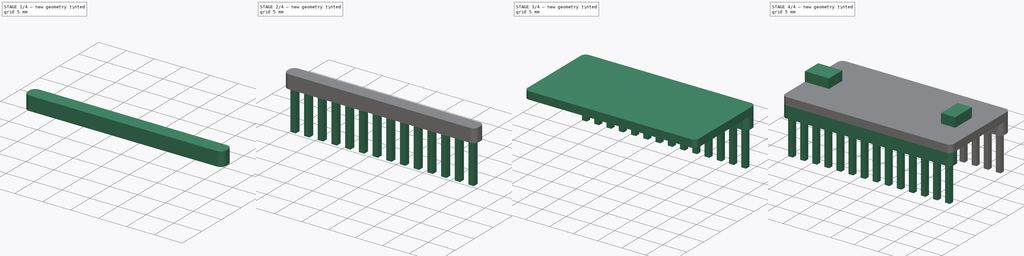
[diagram: build sequence overview — one tinted view per stage of 4, left to right]
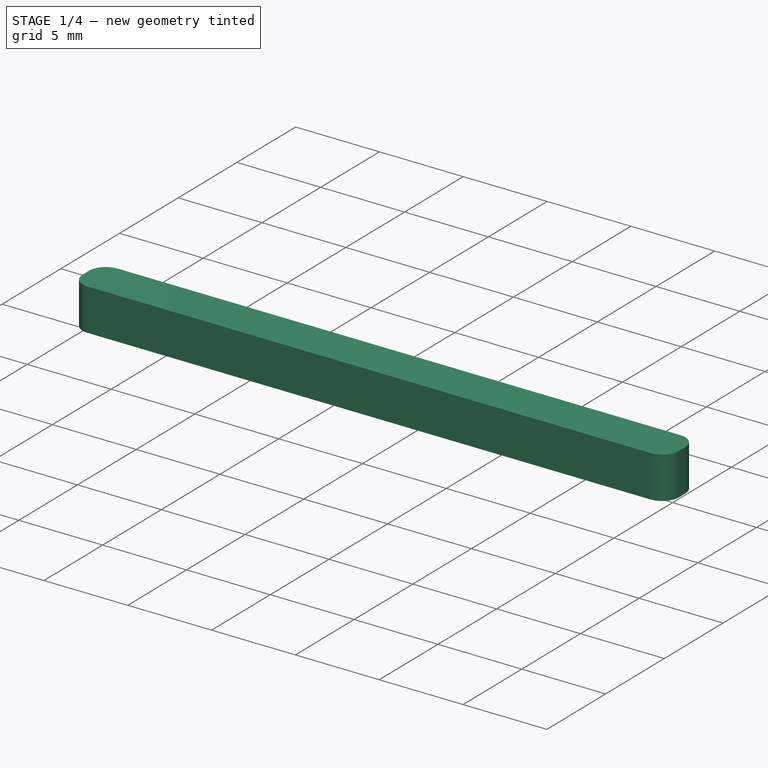
[diagram: stage 1 of 4 — iso view after this stage's code; geometry added in this stage tinted green]
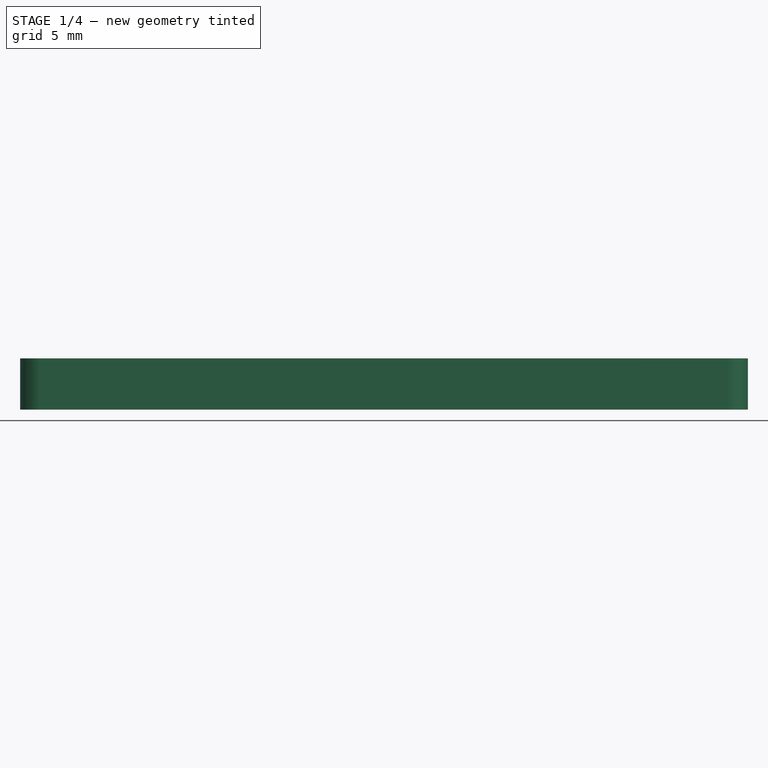
[diagram: stage 1 of 4 — front view after this stage's code; geometry added in this stage tinted green]
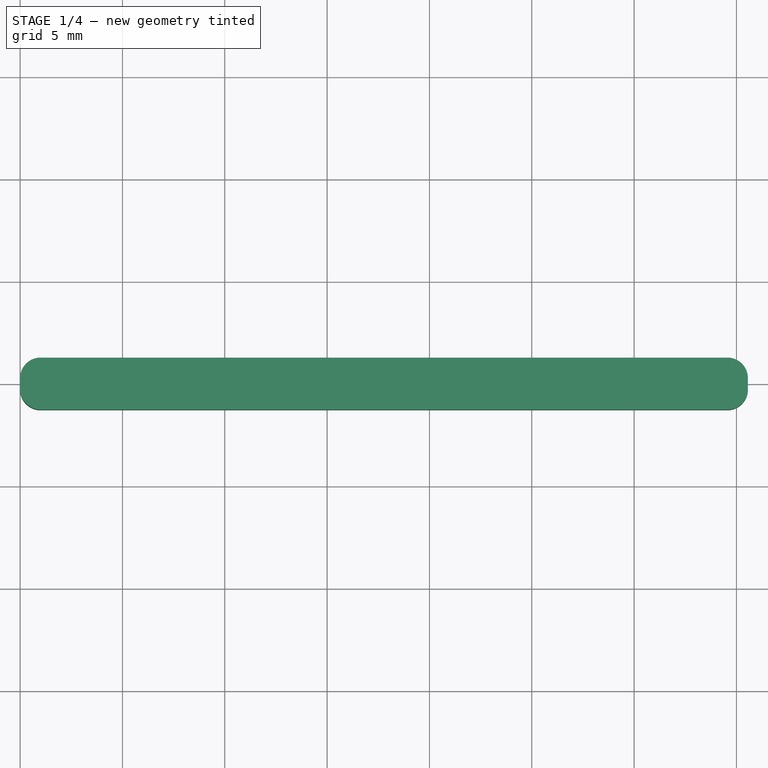
[diagram: stage 1 of 4 — top view after this stage's code; geometry added in this stage tinted green]
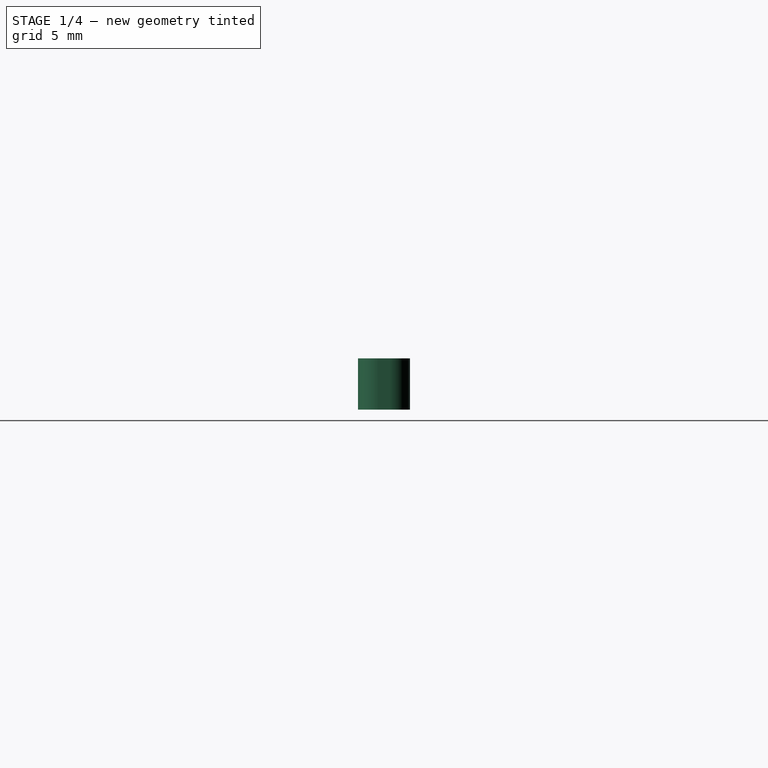
[diagram: stage 1 of 4 — right view after this stage's code; geometry added in this stage tinted green]
FCSTD DOCUMENT  (FreeCAD 0.18R16085 (Git))
Label: Adafruit_ItsyBitsy_M4
License: CreativeCommons Attribution-ShareAlike
LicenseURL: http://creativecommons.org/licenses/by-sa/4.0/
objects: Sketcher::SketchObject×4, PartDesign::Pad×4, PartDesign::Body×3, PartDesign::Fillet×2, PartDesign::LinearPattern×1, PartDesign::FeatureBase×1, App::Part×1, Part::Compound×1, Part::Feature×1
note: 21 computed .brp shape members not serialized (recipe doc carries the construction recipe); baked Part::Feature solids carry a one-line shape summary decoded from their .brp

FEATURE [PartDesign::Body] Body  label="ItsyBitsy_M4_Body"
  Group = -> [Sketch,Pad,Fillet,Sketch001,Pad001]
  Origin = -> Origin
  Tip = -> Pad001
FEATURE [Sketcher::SketchObject] Sketch002
  MapMode = 5
  Support = -> [XY_Plane002]
  sketch-geometry (4):
    g0: LineSegment StartX=0 StartY=1.27 StartZ=0 EndX=35.56 EndY=1.27 EndZ=0
    g1: LineSegment StartX=35.56 StartY=1.27 StartZ=0 EndX=35.56 EndY=-1.27 EndZ=0
    g2: LineSegment StartX=35.56 StartY=-1.27 StartZ=0 EndX=0 EndY=-1.27 EndZ=0
    g3: LineSegment StartX=0 StartY=-1.27 StartZ=0 EndX=0 EndY=1.27 EndZ=0
  constraints (11):
    c: Coincident(g0,g1)
    c: Coincident(g1,g2)
    c: Coincident(g2,g3)
    c: Coincident(g3,g0)
    c: Horizontal(g0)
    c: Horizontal(g2)
    c: Vertical(g1)
    c: Vertical(g3)
    c: DistanceY(g3,g3) = 2.54
    c: DistanceX(g0,g0) = 35.56
    c: Symmetric(g3,g3,g-1)
FEATURE [PartDesign::Pad] Pad002
  Length = 2.5
  Length2 = 100
  Profile = -> Sketch002
  Reversed = true
  Type = 0
FEATURE [PartDesign::Fillet] Fillet001
  Base = -> Pad002 [Edge2,Edge5,Edge1,Edge8]
  BaseFeature = -> Pad002
  Radius = 1
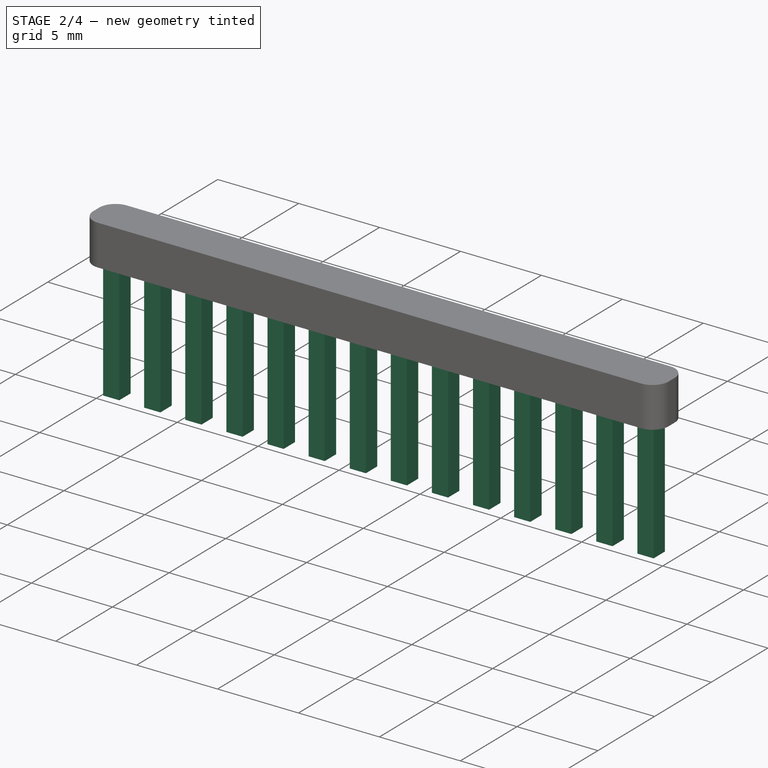
[diagram: stage 2 of 4 — iso view after this stage's code; geometry added in this stage tinted green]
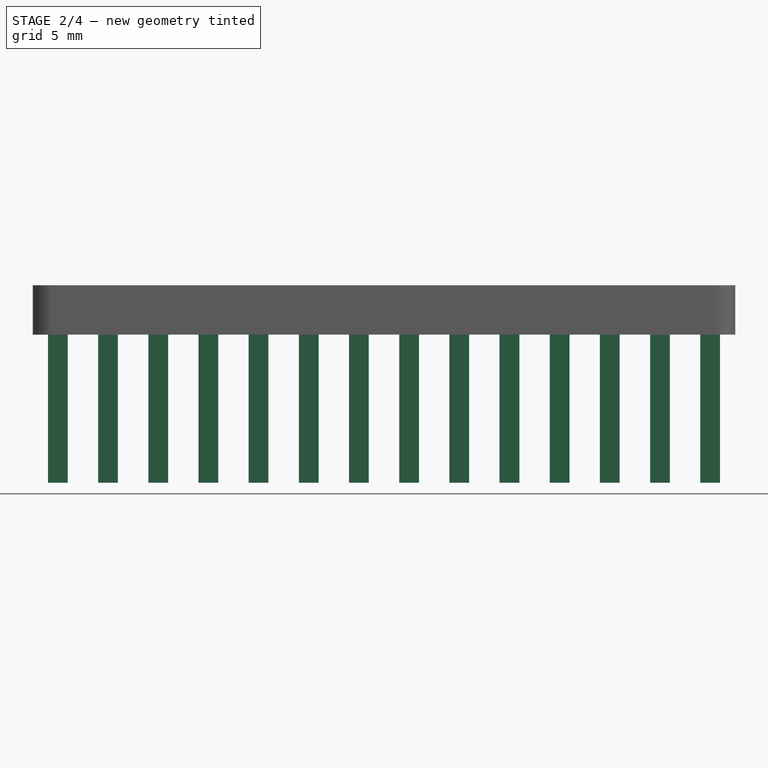
[diagram: stage 2 of 4 — front view after this stage's code; geometry added in this stage tinted green]
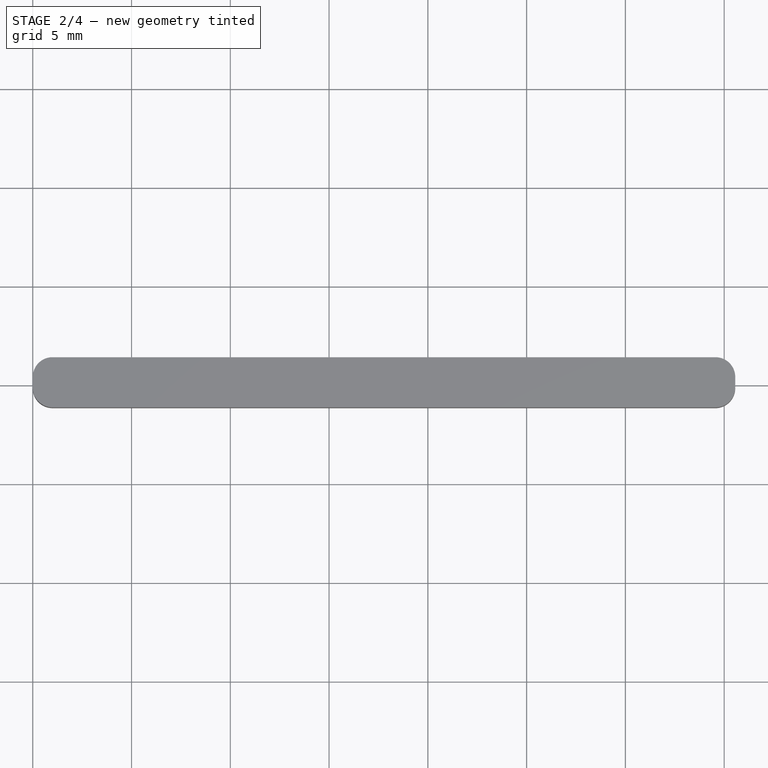
[diagram: stage 2 of 4 — top view after this stage's code; geometry added in this stage tinted green]
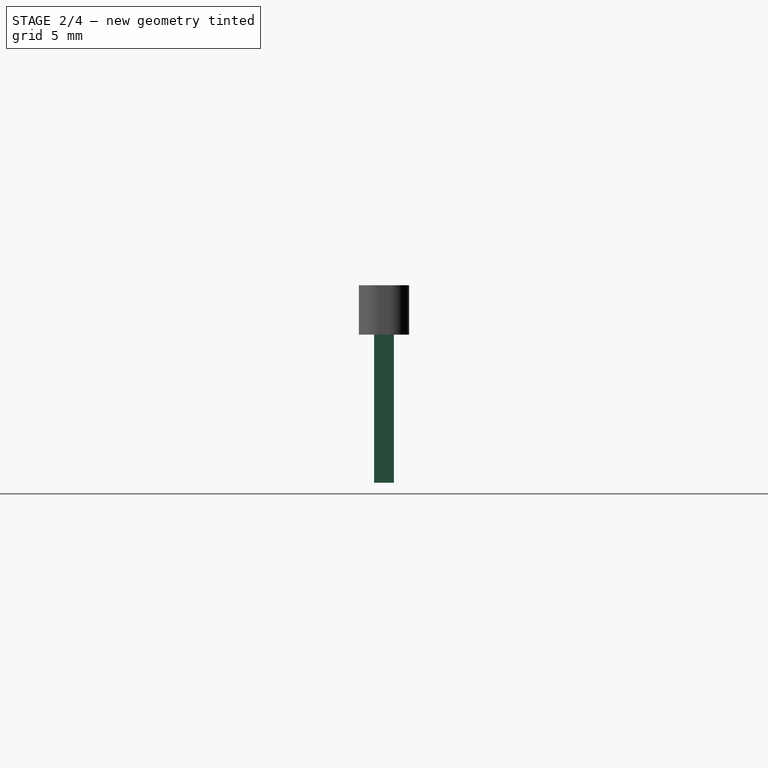
[diagram: stage 2 of 4 — right view after this stage's code; geometry added in this stage tinted green]
FEATURE [Sketcher::SketchObject] Sketch003
  MapMode = 5
  Placement = pos=(0,0,-2.5) rot=(1,0,0;3.14159rad)
  Support = -> [Fillet001]
  sketch-geometry (5):
    g0: LineSegment StartX=0.77 StartY=0.5 StartZ=0 EndX=1.77 EndY=0.5 EndZ=0
    g1: LineSegment StartX=1.77 StartY=0.5 StartZ=0 EndX=1.77 EndY=-0.5 EndZ=0
    g2: LineSegment StartX=1.77 StartY=-0.5 StartZ=0 EndX=0.77 EndY=-0.5 EndZ=0
    g3: LineSegment StartX=0.77 StartY=-0.5 StartZ=0 EndX=0.77 EndY=0.5 EndZ=0
    g4: GeomPoint X=1.27 Y=0 Z=0
  constraints (13):
    c: Coincident(g0,g1)
    c: Coincident(g1,g2)
    c: Coincident(g2,g3)
    c: Coincident(g3,g0)
    c: Horizontal(g0)
    c: Horizontal(g2)
    c: Vertical(g1)
    c: Vertical(g3)
    c: Equal(g2,g1)
    c: DistanceX(g0,g0) = 1
    c: Symmetric(g0,g2,g4)
    c: DistanceX(g4) = 1.27
    c: PointOnObject(g4,g-1)
FEATURE [PartDesign::Pad] Pad003
  BaseFeature = -> Fillet001
  Length = 7.5
  Length2 = 100
  Profile = -> Sketch003
  Type = 0
FEATURE [PartDesign::LinearPattern] LinearPattern
  BaseFeature = -> Pad003
  Direction = -> Sketch003 [H_Axis]
  Length = 33.02
  Occurrences = 14
  Originals = -> [Pad003]
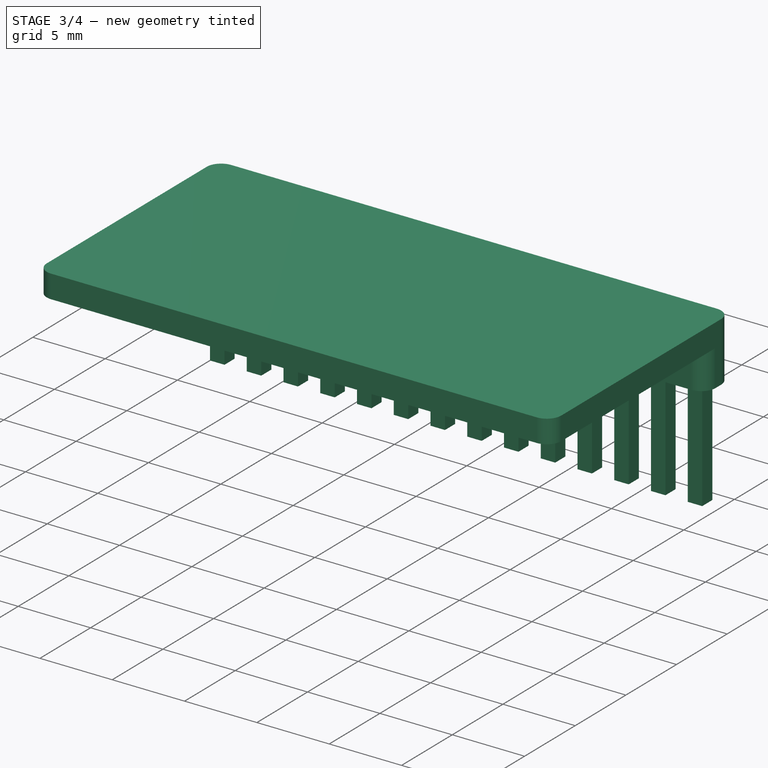
[diagram: stage 3 of 4 — iso view after this stage's code; geometry added in this stage tinted green]
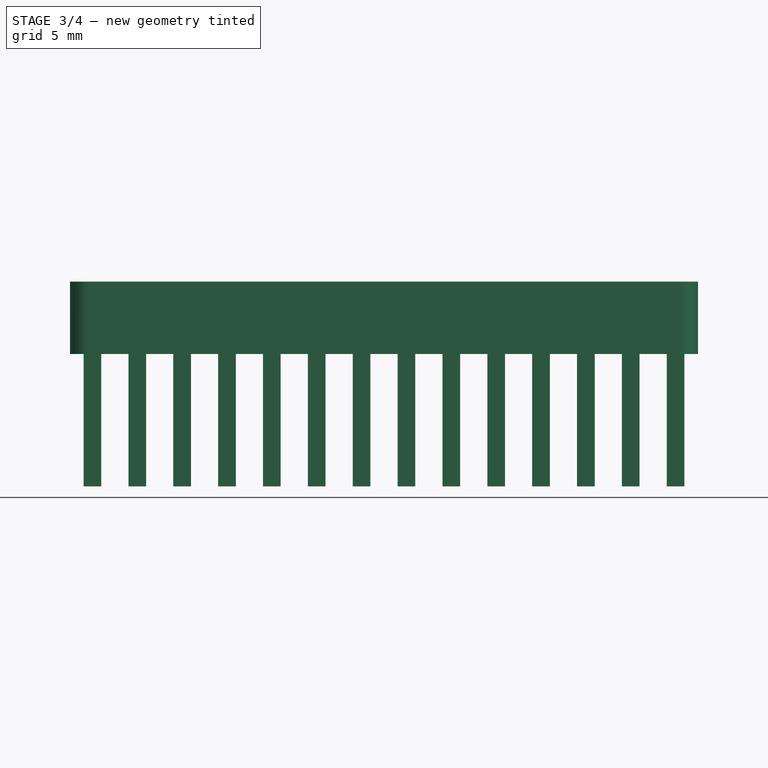
[diagram: stage 3 of 4 — front view after this stage's code; geometry added in this stage tinted green]
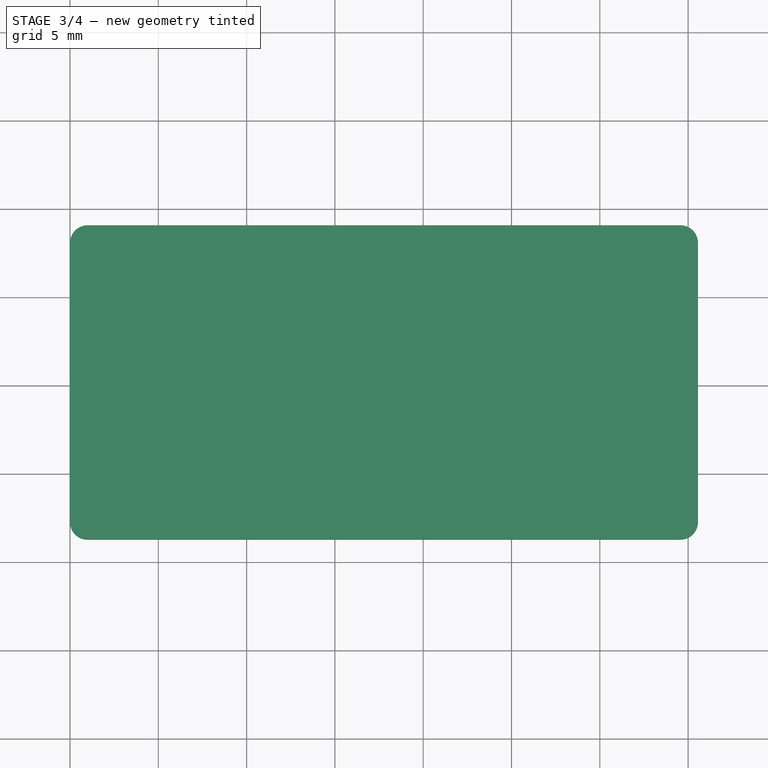
[diagram: stage 3 of 4 — top view after this stage's code; geometry added in this stage tinted green]
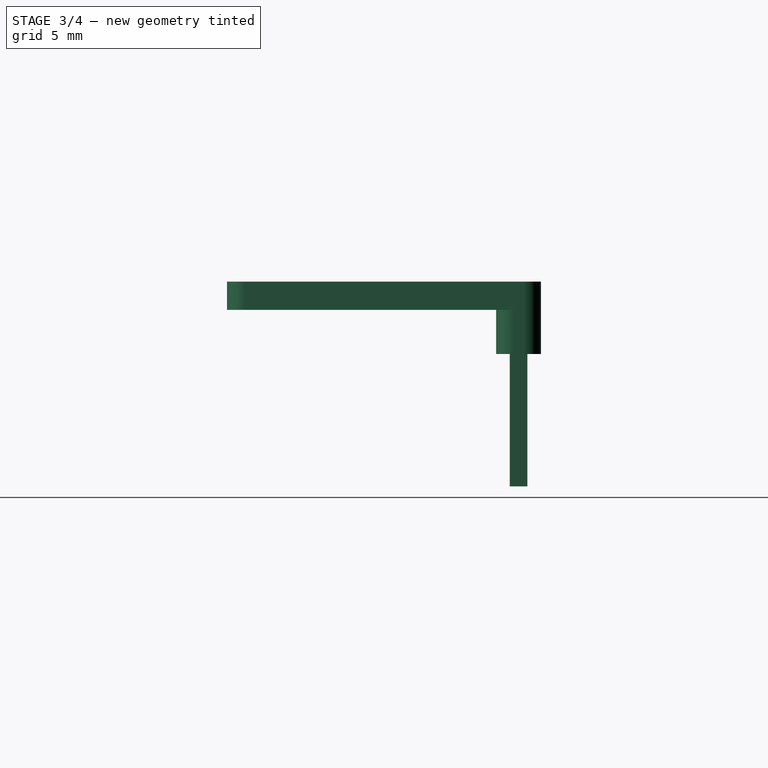
[diagram: stage 3 of 4 — right view after this stage's code; geometry added in this stage tinted green]
FEATURE [Sketcher::SketchObject] Sketch
  MapMode = 5
  Support = -> [XY_Plane]
  sketch-geometry (4):
    g0: LineSegment StartX=0 StartY=8.89 StartZ=0 EndX=35.56 EndY=8.89 EndZ=0
    g1: LineSegment StartX=35.56 StartY=8.89 StartZ=0 EndX=35.56 EndY=-8.89 EndZ=0
    g2: LineSegment StartX=35.56 StartY=-8.89 StartZ=0 EndX=0 EndY=-8.89 EndZ=0
    g3: LineSegment StartX=0 StartY=-8.89 StartZ=0 EndX=0 EndY=8.89 EndZ=0
  constraints (11):
    c: Coincident(g0,g1)
    c: Coincident(g1,g2)
    c: Coincident(g2,g3)
    c: Coincident(g3,g0)
    c: Horizontal(g0)
    c: Horizontal(g2)
    c: Vertical(g1)
    c: Vertical(g3)
    c: DistanceY(g3,g3) = 17.78
    c: DistanceX(g0,g0) = 35.56
    c: Symmetric(g3,g3,g-1)
FEATURE [PartDesign::Pad] Pad
  Length = 1.6
  Length2 = 100
  Profile = -> Sketch
  Type = 0
FEATURE [PartDesign::Fillet] Fillet
  Base = -> Pad [Edge8,Edge1,Edge5,Edge2]
  BaseFeature = -> Pad
  Radius = 1
FEATURE [PartDesign::Body] Body001  label="Pins_Body"
  Group = -> [Sketch002,Pad002,Fillet001,Sketch003,Pad003,LinearPattern]
  Origin = -> Origin002
  Placement = pos=(0,7.62,0) rot=(0,0,1;0rad)
  Tip = -> LinearPattern
FEATURE [PartDesign::FeatureBase] Clone
  BaseFeature = -> Body001
  Placement = pos=(0,7.62,0) rot=(0,0,1;0rad)
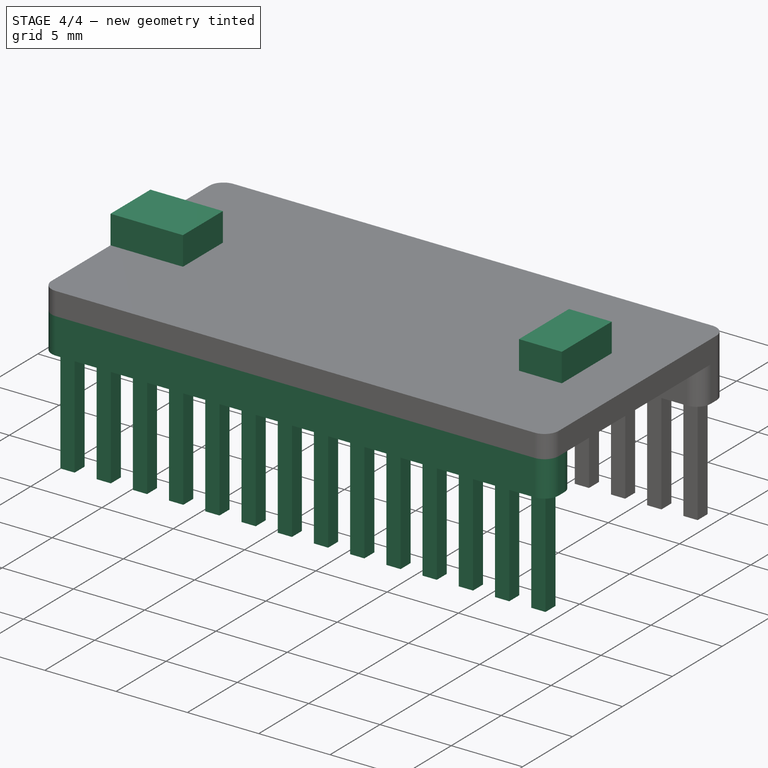
[diagram: stage 4 of 4 — iso view after this stage's code; geometry added in this stage tinted green]
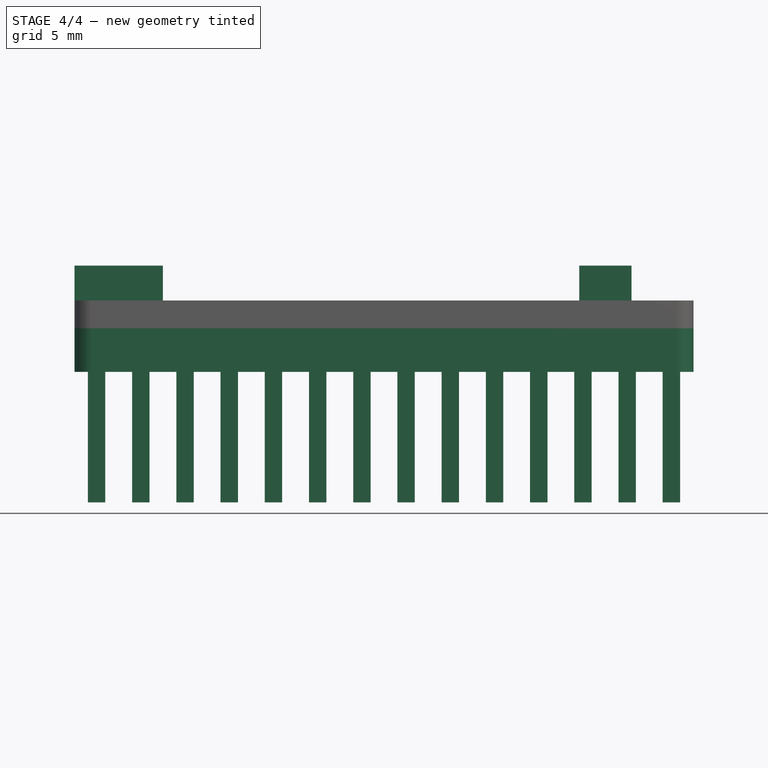
[diagram: stage 4 of 4 — front view after this stage's code; geometry added in this stage tinted green]
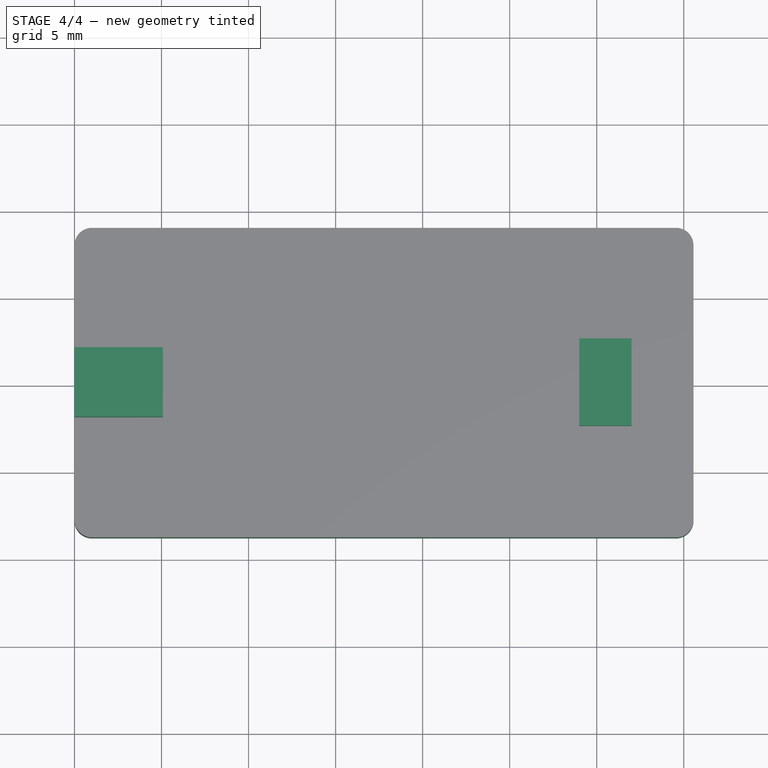
[diagram: stage 4 of 4 — top view after this stage's code; geometry added in this stage tinted green]
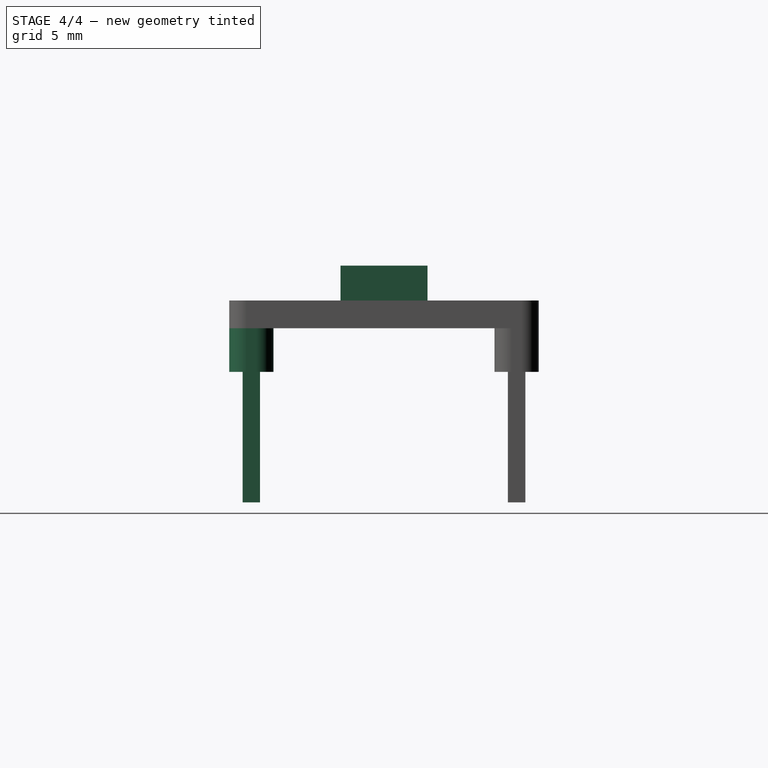
[diagram: stage 4 of 4 — right view after this stage's code; geometry added in this stage tinted green]
FEATURE [Sketcher::SketchObject] Sketch001
  MapMode = 5
  Placement = pos=(0,0,1.6) rot=(0,0,1;0rad)
  Support = -> [Fillet]
  sketch-geometry (9):
    g0: LineSegment StartX=0 StartY=2 StartZ=0 EndX=5.08 EndY=2 EndZ=0
    g1: LineSegment StartX=5.08 StartY=2 StartZ=0 EndX=5.08 EndY=-2 EndZ=0
    g2: LineSegment StartX=5.08 StartY=-2 StartZ=0 EndX=0 EndY=-2 EndZ=0
    g3: LineSegment StartX=0 StartY=-2 StartZ=0 EndX=0 EndY=2 EndZ=0
    g4: LineSegment StartX=29 StartY=2.5 StartZ=0 EndX=32 EndY=2.5 EndZ=0
    g5: LineSegment StartX=32 StartY=2.5 StartZ=0 EndX=32 EndY=-2.5 EndZ=0
    g6: LineSegment StartX=32 StartY=-2.5 StartZ=0 EndX=29 EndY=-2.5 EndZ=0
    g7: LineSegment StartX=29 StartY=-2.5 StartZ=0 EndX=29 EndY=2.5 EndZ=0
    g8: GeomPoint X=30.5 Y=0 Z=0
  constraints (24):
    c: Coincident(g0,g1)
    c: Coincident(g1,g2)
    c: Coincident(g2,g3)
    c: Coincident(g3,g0)
    c: Horizontal(g0)
    c: Horizontal(g2)
    c: Vertical(g1)
    c: Vertical(g3)
    c: Symmetric(g3,g3,g-1)
    c: DistanceX(g0,g0) = 5.08
    c: DistanceY(g1,g1) = 4
    c: Coincident(g4,g5)
    c: Coincident(g5,g6)
    c: Coincident(g6,g7)
    c: Coincident(g7,g4)
    c: Horizontal(g4)
    c: Horizontal(g6)
    c: Vertical(g5)
    c: Vertical(g7)
    c: Symmetric(g6,g4,g8)
    c: DistanceX(g4,g4) = 3
    c: DistanceY(g5,g5) = 5
    c: PointOnObject(g8,g-1)
    c: DistanceX(g8) = 30.5
FEATURE [PartDesign::Pad] Pad001
  BaseFeature = -> Fillet
  Length = 2
  Length2 = 100
  Profile = -> Sketch001
  Type = 0
FEATURE [PartDesign::Body] Body002  label="Pins_Clone"
  Group = -> [Clone]
  Origin = -> Origin003
  Placement = pos=(0,-15.24,0) rot=(0,0,1;0rad)
  Tip = -> Clone
FEATURE [App::Part] Part  label="ItsyBitsy_M4_Part"
  Group = -> [Body,Body001,Body002]
  Origin = -> Origin001
FEATURE [Part::Compound] Compound
  Links = -> [Body002,Body001,Body]
FEATURE [Part::Feature] Compound001  label="ItsyBitsy_M4_simplecopy"
  shape: bbox 35.56 x 17.78 x 13.6 mm, 180 faces, 3 solids (baked)
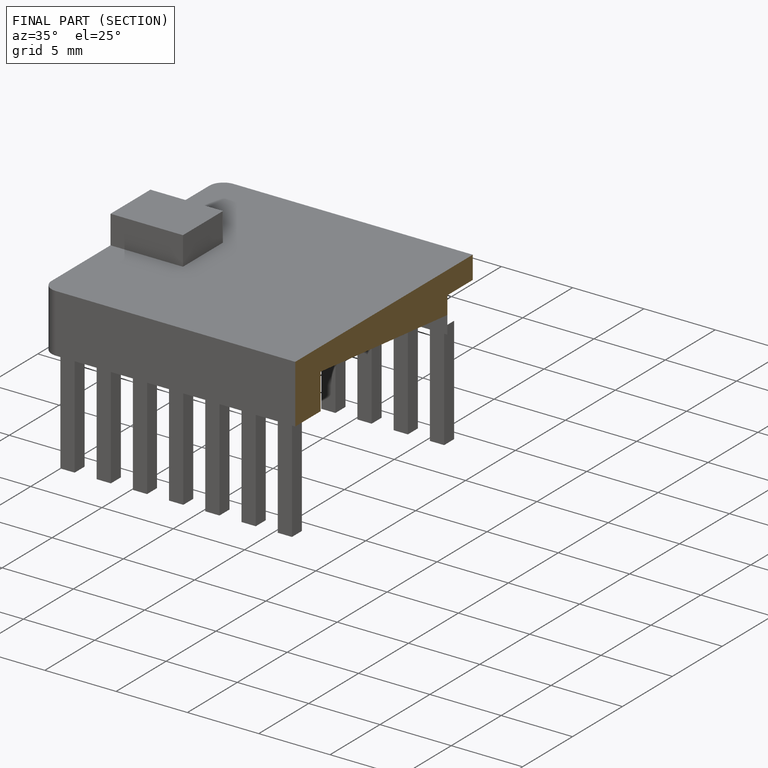
[diagram: finished part — half-section view (interior)]
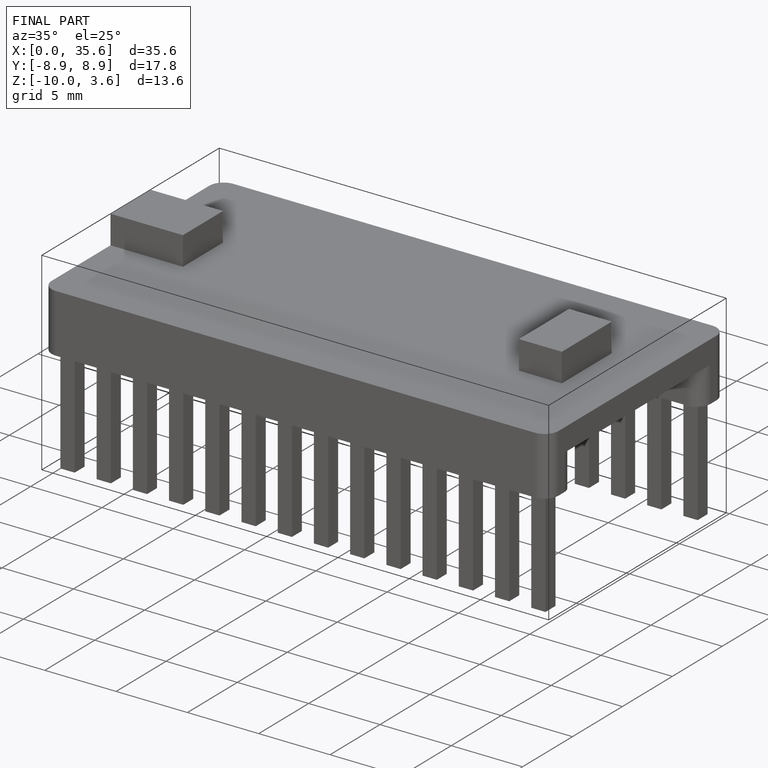
[diagram: finished part — iso view with bounding-box wireframe]
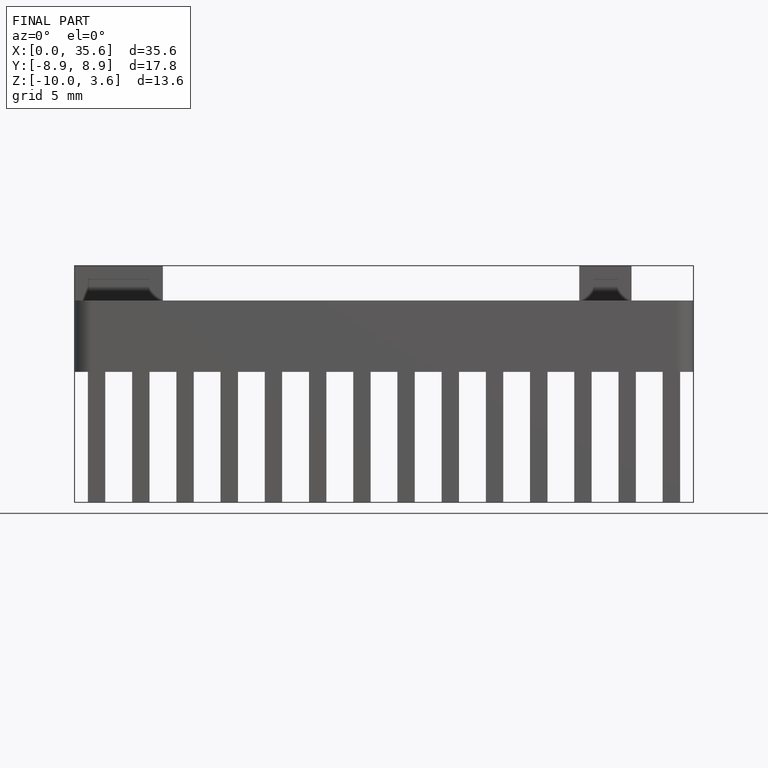
[diagram: finished part — front view with bounding-box wireframe]
